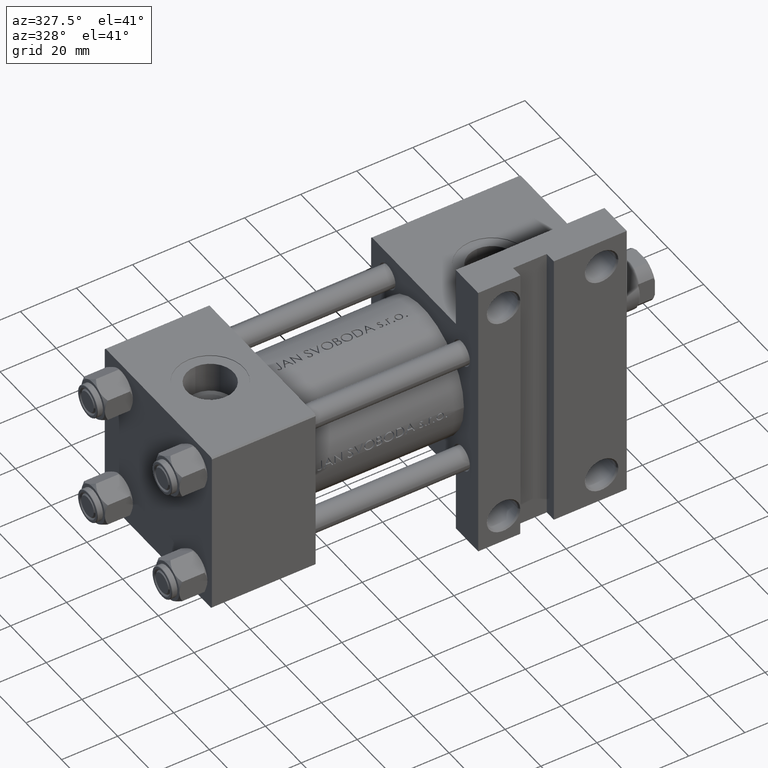
[diagram: clean part render]
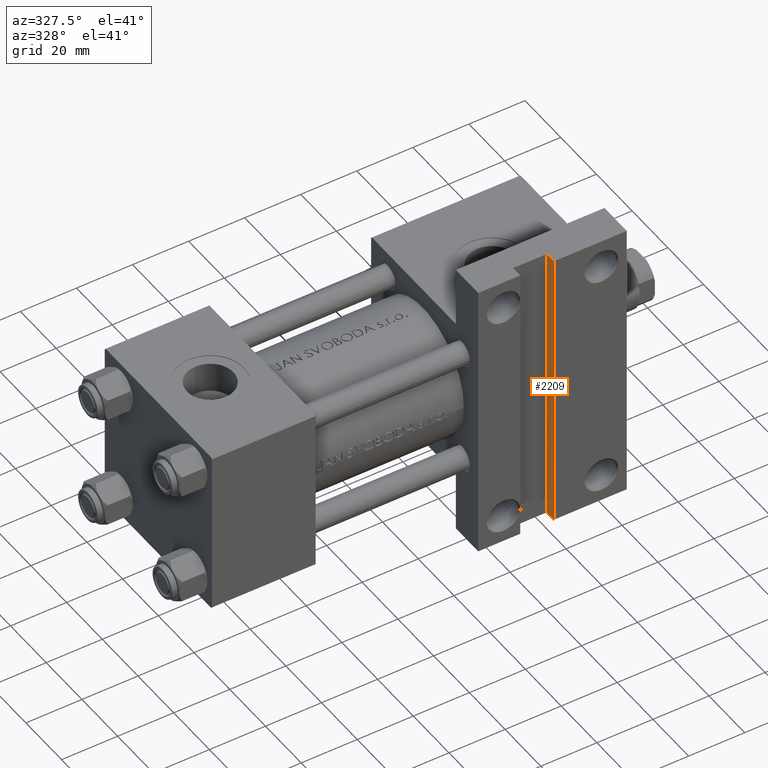
[diagram: same view with one face highlighted and labeled with its STEP entity id]
A machine part, auxiliary view. The second image highlights one B-rep face of the part: STEP entity #2209.
In plain terms, the highlighted planar face has unit normal (1, 0, 0).
Its self-contained STEP definition (entity closure, byte-faithful):
#1242 = CARTESIAN_POINT ( 'NONE',  ( 121.9999999999999858, -51.50000000000000711, -25.99999999999999645 ) ) ;
#2209 = ADVANCED_FACE ( 'NONE', ( #44320 ), #10581, .F. ) ;
#5605 = CARTESIAN_POINT ( 'NONE',  ( 121.9999999999999858, -51.49999999999999289, -29.99999999999999645 ) ) ;
#6851 = CARTESIAN_POINT ( 'NONE',  ( 121.9999999999999858, 51.50000000000000711, -29.99999999999999645 ) ) ;
#7993 = VECTOR ( 'NONE', #29947, 1000.000000000000000 ) ;
#10534 = ORIENTED_EDGE ( 'NONE', *, *, #24803, .F. ) ;
#10581 = PLANE ( 'NONE',  #20700 ) ;
#10972 = DIRECTION ( 'NONE',  ( -0.000000000000000000, -0.000000000000000000, -1.000000000000000000 ) ) ;
#14165 = VERTEX_POINT ( 'NONE', #19904 ) ;
#16450 = LINE ( 'NONE', #5605, #30698 ) ;
#18455 = CARTESIAN_POINT ( 'NONE',  ( 121.9999999999999858, -51.49999999999999289, -25.99999999999999645 ) ) ;
#19196 = VERTEX_POINT ( 'NONE', #1242 ) ;
#19318 = LINE ( 'NONE', #45667, #27613 ) ;
#19904 = CARTESIAN_POINT ( 'NONE',  ( 121.9999999999999858, 51.50000000000000711, -25.99999999999999645 ) ) ;
#20700 = AXIS2_PLACEMENT_3D ( 'NONE', #18455, #25604, #36938 ) ;
#21618 = VERTEX_POINT ( 'NONE', #32634 ) ;
#22336 = EDGE_CURVE ( 'NONE', #40961, #21618, #16450, .T. ) ;
#23128 = EDGE_LOOP ( 'NONE', ( #41591, #10534, #41876, #42553 ) ) ;
#24803 = EDGE_CURVE ( 'NONE', #19196, #21618, #19318, .T. ) ;
#25604 = DIRECTION ( 'NONE',  ( 1.000000000000000000, 0.000000000000000000, 0.000000000000000000 ) ) ;
#26349 = CARTESIAN_POINT ( 'NONE',  ( 121.9999999999999858, 51.50000000000000711, -25.99999999999999645 ) ) ;
#26532 = EDGE_CURVE ( 'NONE', #14165, #19196, #40551, .T. ) ;
#27613 = VECTOR ( 'NONE', #10972, 1000.000000000000000 ) ;
#29947 = DIRECTION ( 'NONE',  ( -0.000000000000000000, -1.000000000000000000, -0.000000000000000000 ) ) ;
#30698 = VECTOR ( 'NONE', #43293, 1000.000000000000000 ) ;
#32634 = CARTESIAN_POINT ( 'NONE',  ( 121.9999999999999858, -51.49999999999999289, -29.99999999999999645 ) ) ;
#33166 = CARTESIAN_POINT ( 'NONE',  ( 121.9999999999999858, -51.49999999999999289, -25.99999999999999645 ) ) ;
#33348 = VECTOR ( 'NONE', #33991, 1000.000000000000000 ) ;
#33918 = EDGE_CURVE ( 'NONE', #14165, #40961, #44834, .T. ) ;
#33991 = DIRECTION ( 'NONE',  ( -0.000000000000000000, -0.000000000000000000, -1.000000000000000000 ) ) ;
#36938 = DIRECTION ( 'NONE',  ( 0.000000000000000000, 0.000000000000000000, -1.000000000000000000 ) ) ;
#40551 = LINE ( 'NONE', #33166, #7993 ) ;
#40961 = VERTEX_POINT ( 'NONE', #6851 ) ;
#41591 = ORIENTED_EDGE ( 'NONE', *, *, #22336, .T. ) ;
#41876 = ORIENTED_EDGE ( 'NONE', *, *, #26532, .F. ) ;
#42553 = ORIENTED_EDGE ( 'NONE', *, *, #33918, .T. ) ;
#43293 = DIRECTION ( 'NONE',  ( -0.000000000000000000, -1.000000000000000000, -0.000000000000000000 ) ) ;
#44320 = FACE_OUTER_BOUND ( 'NONE', #23128, .T. ) ;
#44834 = LINE ( 'NONE', #26349, #33348 ) ;
#45667 = CARTESIAN_POINT ( 'NONE',  ( 121.9999999999999858, -51.49999999999999289, -25.99999999999999645 ) ) ;